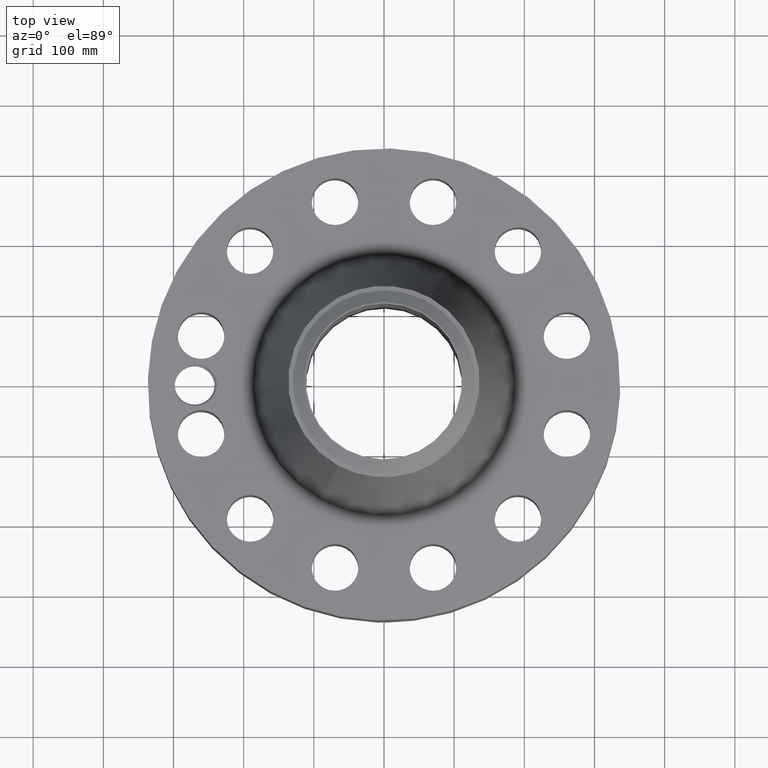
[diagram: clean part render]
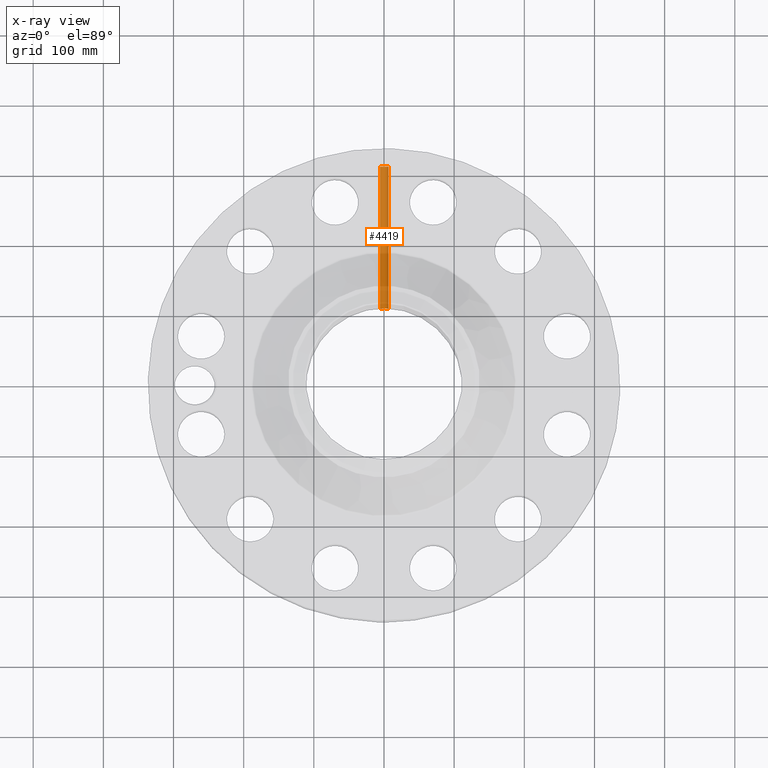
[diagram: x-ray — body ghosted, one internal face saturated and labeled with its STEP entity id]
A machine part, top view, then the same camera in x-ray: the body is ghosted and one INTERNAL B-rep face — a face not visible from any outside direction — is saturated and labeled: STEP entity #4419.
In plain terms, the highlighted cylindrical surface (edge-blend (fillet) strip) has radius 6.35 mm, axis along (-0, -1, 0).
Its self-contained STEP definition (entity closure, byte-faithful):
#4392=AXIS2_PLACEMENT_3D('Cylinder Axis2P3D',#4389,#4390,#4391) ;
#4403=AXIS2_PLACEMENT_3D('Circle Axis2P3D',#4401,#4402,$) ;
#3227=CARTESIAN_POINT('Vertex',(0.219395640473,4.3694954575,1.05985638466)) ;
#3229=CARTESIAN_POINT('Vertex',(-0.219395640473,4.3694954575,0.820143615352)) ;
#3233=CARTESIAN_POINT('Control Point',(-0.219395640473,4.3694954575,0.820143615352)) ;
#3234=CARTESIAN_POINT('Control Point',(-0.206921825529,4.37012177709,0.797310450254)) ;
#3235=CARTESIAN_POINT('Control Point',(-0.191478829917,4.37085255723,0.776102242811)) ;
#3236=CARTESIAN_POINT('Control Point',(-0.173346694109,4.3716313096,0.757031420542)) ;
#3237=CARTESIAN_POINT('Control Point',(-0.112147067872,4.3738833864,0.707558297672)) ;
#3238=CARTESIAN_POINT('Control Point',(-0.0350000945397,4.37534654876,0.684030761432)) ;
#3239=CARTESIAN_POINT('Control Point',(0.0195410405476,4.37545612446,0.682387722919)) ;
#3240=CARTESIAN_POINT('Control Point',(0.12412068121,4.37384641052,0.707520149241)) ;
#3241=CARTESIAN_POINT('Control Point',(0.203162153548,4.37051308473,0.780409167146)) ;
#3242=CARTESIAN_POINT('Control Point',(0.232145156507,4.36887123257,0.826611315118)) ;
#3243=CARTESIAN_POINT('Control Point',(0.255829519936,4.36751853964,0.904772467443)) ;
#3244=CARTESIAN_POINT('Control Point',(0.248302223506,4.36794807787,0.98417335099)) ;
#3245=CARTESIAN_POINT('Control Point',(0.242067984334,4.36830910102,1.01076700458)) ;
#3246=CARTESIAN_POINT('Control Point',(0.232327425765,4.36884614287,1.03618491046)) ;
#3247=CARTESIAN_POINT('Control Point',(0.219395640473,4.3694954575,1.05985638466)) ;
#4389=CARTESIAN_POINT('Axis2P3D Location',(2.65681851162E-015,13.2460629922,0.940000000004)) ;
#4394=CARTESIAN_POINT('Line Origine',(0.219395640473,8.3463861997,1.05985638466)) ;
#4398=CARTESIAN_POINT('Vertex',(0.219395640473,12.3253854047,1.05985638466)) ;
#4401=CARTESIAN_POINT('Axis2P3D Location',(2.48769278253E-015,12.3253854047,0.940000000004)) ;
#4405=CARTESIAN_POINT('Vertex',(-0.219395640473,12.3253854047,0.820143615352)) ;
#4408=CARTESIAN_POINT('Line Origine',(-0.219395640473,8.3463861997,0.820143615352)) ;
#4390=DIRECTION('Axis2P3D Direction',(-7.2321661367E-018,-0.0393700787402,0.)) ;
#4391=DIRECTION('Axis2P3D XDirection',(0.0345504945626,-6.34682288626E-018,0.0188750212049)) ;
#4395=DIRECTION('Vector Direction',(-7.26571278167E-018,-0.0393700787402,0.)) ;
#4402=DIRECTION('Axis2P3D Direction',(-7.2321661367E-018,-0.0393700787402,0.)) ;
#4409=DIRECTION('Vector Direction',(-7.26571278167E-018,-0.0393700787402,0.)) ;
#4396=VECTOR('Line Direction',#4395,0.0393700787402) ;
#4410=VECTOR('Line Direction',#4409,0.0393700787402) ;
#4414=ORIENTED_EDGE('',*,*,#3248,.T.) ;
#4415=ORIENTED_EDGE('',*,*,#4400,.T.) ;
#4416=ORIENTED_EDGE('',*,*,#4407,.F.) ;
#4417=ORIENTED_EDGE('',*,*,#4412,.F.) ;
#4419=ADVANCED_FACE('PartBody',(#4418),#4393,.F.) ;
#3232=B_SPLINE_CURVE_WITH_KNOTS('',5,(#3233,#3234,#3235,#3236,#3237,#3238,#3239,#3240,#3241,#3242,#3243,#3244,#3245,#3246,#3247),.UNSPECIFIED.,.F.,.U.,(6,3,3,3,6),(0.,4.67436526393,14.0217474,23.3717136123,28.2176960353),.UNSPECIFIED.) ;
#4404=CIRCLE('generated circle',#4403,0.250000000001) ;
#4393=CYLINDRICAL_SURFACE('generated cylinder',#4392,0.250000000001) ;
#3248=EDGE_CURVE('',#3230,#3228,#3232,.T.) ;
#4400=EDGE_CURVE('',#3228,#4399,#4397,.F.) ;
#4407=EDGE_CURVE('',#4406,#4399,#4404,.T.) ;
#4412=EDGE_CURVE('',#3230,#4406,#4411,.F.) ;
#4413=EDGE_LOOP('',(#4414,#4415,#4416,#4417)) ;
#4418=FACE_OUTER_BOUND('',#4413,.T.) ;
#4397=LINE('Line',#4394,#4396) ;
#4411=LINE('Line',#4408,#4410) ;
#3228=VERTEX_POINT('',#3227) ;
#3230=VERTEX_POINT('',#3229) ;
#4399=VERTEX_POINT('',#4398) ;
#4406=VERTEX_POINT('',#4405) ;